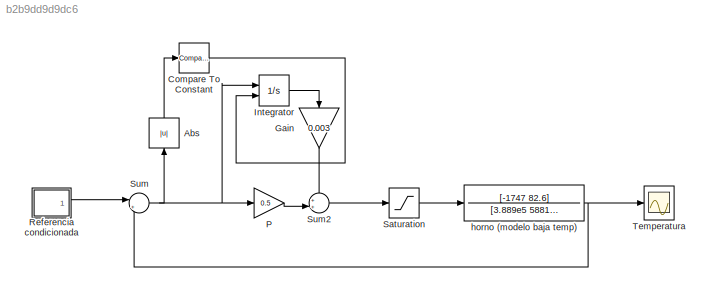
MODEL slx_b2b9dd9d9dc6
KIND model
CONFIG AbsTol = auto
CONFIG FixedStep = auto
CONFIG MaxStep = auto
CONFIG MinStep = auto
CONFIG RelTol = 1e-3
CONFIG SampleTimeConstraint = Unconstrained
CONFIG Solver = ode45
CONFIG SolverMode = Auto
CONFIG SolverName = ode45
CONFIG StartTime = 0.0
CONFIG StopTime = 1500
BLOCK [Abs] Abs
  SaturateOnIntegerOverflow = off
BLOCK [Reference] Compare To Constant  REF=simulink/Logic and Bit
Operations/Compare
To Constant
  OutDataTypeStr = boolean
  Ports = [1, 1]
  SourceBlock = simulink/Logic and Bit\nOperations/Compare\nTo Constant
  SourceType = Compare To Constant
  ZeroCross = on
  const = 10
  relop = >
BLOCK [Gain] Gain
  Gain = 0.003
  OutDataTypeStr = Inherit: Inherit via internal rule
  ParamDataTypeStr = Inherit: Inherit via internal rule
  SaturateOnIntegerOverflow = off
BLOCK [Integrator] Integrator
  ExternalReset = level
  Ports = [2, 1]
BLOCK [Gain] P
  Gain = 0.5
  OutDataTypeStr = Inherit: Inherit via internal rule
  ParamDataTypeStr = Inherit: Inherit via internal rule
  SaturateOnIntegerOverflow = off
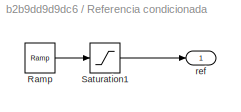
BLOCK [SubSystem] Referencia condicionada
  Ports = [0, 1]
  RequestExecContextInheritance = off
BLOCK [Reference] Referencia condicionada/Ramp  REF=simulink/Sources/Ramp
  Ports = [0, 1]
  SourceBlock = simulink/Sources/Ramp
  SourceType = Ramp
  VectorParams1D = on
  X0 = 0
  slope = 0.3333
  start = 0
BLOCK [Saturate] Referencia condicionada/Saturation1
  InputPortMap = u0
  LowerLimit = 0
  Ports = [1, 1]
  UpperLimit = 168.99
BLOCK [Outport] Referencia condicionada/ref
  IconDisplay = Port number
BLOCK [Saturate] Saturation
  InputPortMap = u0
  LowerLimit = 0
  Ports = [1, 1]
  UpperLimit = 100
  ZeroCross = off
BLOCK [Sum] Sum
  IconShape = round
  InputSameDT = off
  Inputs = |+-
  OutDataTypeStr = Inherit: Inherit via internal rule
  Ports = [2, 1]
  SaturateOnIntegerOverflow = off
BLOCK [Sum] Sum2
  IconShape = round
  InputSameDT = off
  Inputs = ++|
  OutDataTypeStr = Inherit: Inherit via internal rule
  Ports = [2, 1]
  SaturateOnIntegerOverflow = off
BLOCK [Scope] Temperatura
  Floating = off
  LimitDataPoints = off
  NumInputPorts = 1
  Ports = [1]
  SampleInput = on
  SampleTime = 1
  TimeRange = 1500
  YMax = 250
  YMin = -50
  ZoomMode = xonly
BLOCK [TransferFcn] horno (modelo baja temp)
  Denominator = [3.889e5 5881 1]
  Numerator = [-1747 82.6]
LINE Abs:1 -> Compare To Constant:1
LINE Compare To Constant:1 -> Integrator:2
LINE Gain:1 -> Sum2:1
LINE Integrator:1 -> Gain:1
LINE P:1 -> Sum2:2
LINE Referencia condicionada/Ramp:1 -> Referencia condicionada/Saturation1:1
LINE Referencia condicionada/Saturation1:1 -> Referencia condicionada/ref:1
LINE Referencia condicionada:1 -> Sum:1
LINE Saturation:1 -> horno (modelo baja temp):1
LINE Sum2:1 -> Saturation:1
NET Sum:1 -> Abs:1, Integrator:1, P:1
NET horno (modelo baja temp):1 -> Sum:2, Temperatura:1
note: NET lines group one-source signal fan-out (src -> all destinations, sorted); 1:1 wires keep LINE
